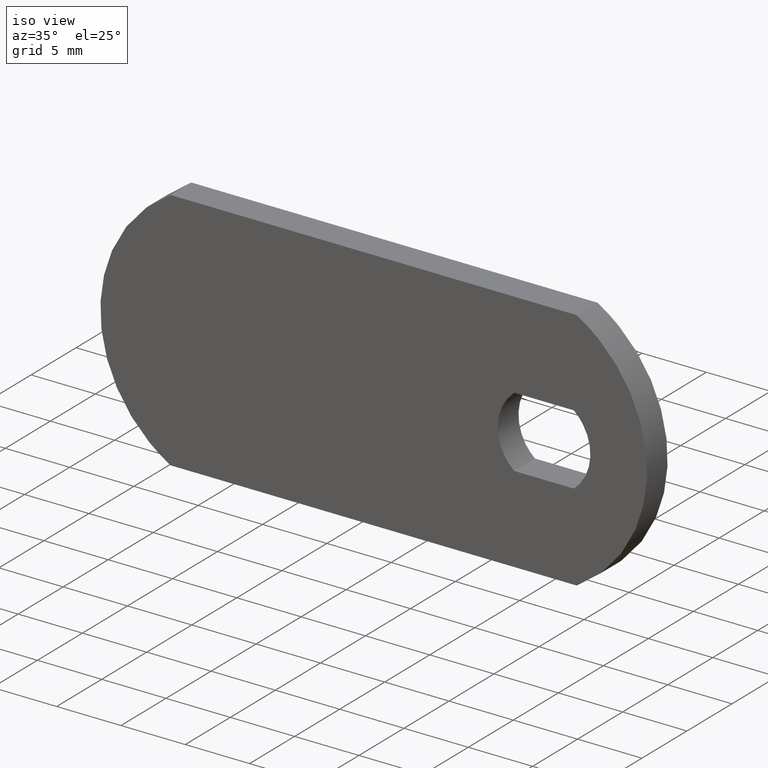
[diagram: clean part render]
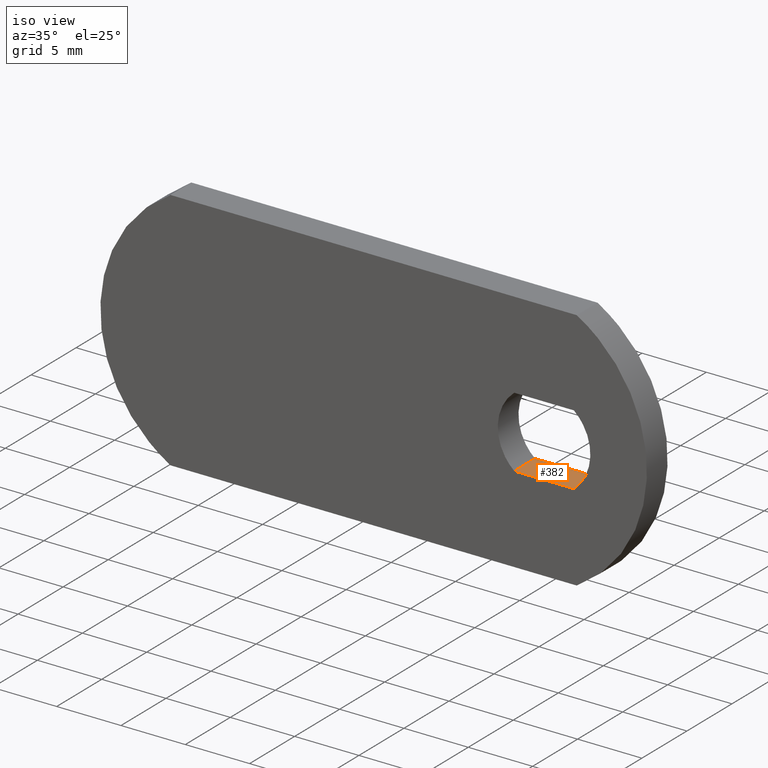
[diagram: same view with one face highlighted and labeled with its STEP entity id]
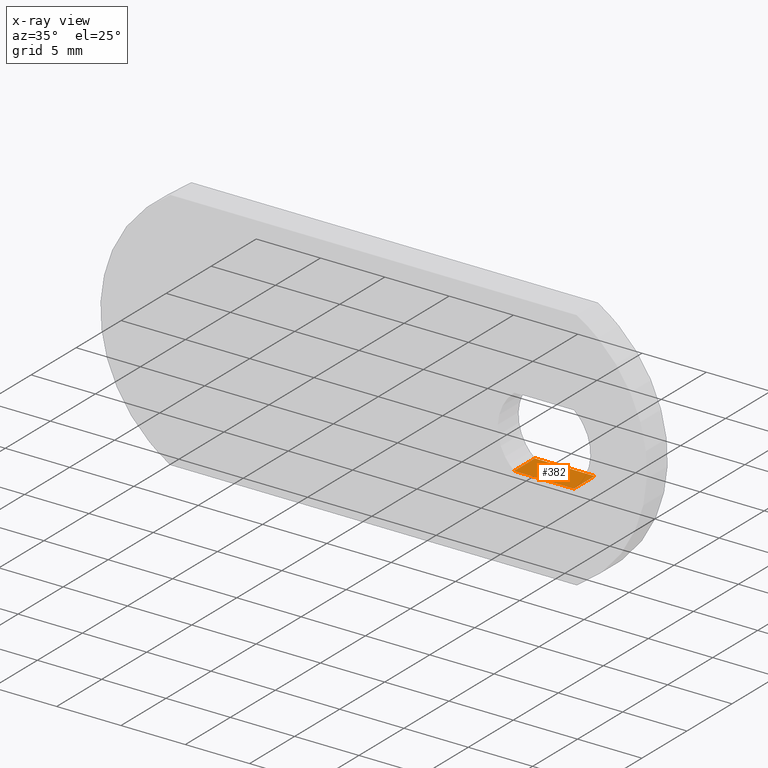
[diagram: x-ray of the same camera — body ghosted, the highlighted face saturated]
A machine part, iso view. The second image highlights one B-rep face of the part: STEP entity #382.
The next image is the same camera in x-ray: the body ghosted, the highlighted face saturated — about 0% of this face is hidden behind the body in this view.
In plain terms, the highlighted face is a freeform B-spline surface patch.
Its self-contained STEP definition (entity closure, byte-faithful):
#108=CARTESIAN_POINT('',(-2.323252031097790,0.0,-2.750000000000000));
#109=VERTEX_POINT('',#108);
#125=CARTESIAN_POINT('',(2.323252031097790,0.0,-2.750000000000000));
#126=VERTEX_POINT('',#125);
#127=CARTESIAN_POINT('',(2.323252031097790,0.0,-2.750000000000000));
#128=CARTESIAN_POINT('',(-2.323252031097790,0.0,-2.750000000000000));
#129=QUASI_UNIFORM_CURVE('',1,(#127,#128),.UNSPECIFIED.,.F.,.U.);
#130=EDGE_CURVE('',#126,#109,#129,.T.);
#214=CARTESIAN_POINT('',(2.323252031097790,-2.300000000000080,-2.750000000000000));
#215=VERTEX_POINT('',#214);
#231=CARTESIAN_POINT('',(-2.323252031097790,-2.300000000000080,-2.750000000000000));
#232=VERTEX_POINT('',#231);
#233=CARTESIAN_POINT('',(2.323252031097790,-2.300000000000080,-2.750000000000000));
#234=CARTESIAN_POINT('',(-2.323252031097790,-2.300000000000080,-2.750000000000000));
#235=QUASI_UNIFORM_CURVE('',1,(#233,#234),.UNSPECIFIED.,.F.,.U.);
#236=EDGE_CURVE('',#215,#232,#235,.T.);
#271=CARTESIAN_POINT('',(2.323252031097790,-2.300000000000080,-2.750000000000000));
#272=CARTESIAN_POINT('',(2.323252031097790,0.0,-2.750000000000000));
#273=QUASI_UNIFORM_CURVE('',1,(#271,#272),.UNSPECIFIED.,.F.,.U.);
#274=EDGE_CURVE('',#215,#126,#273,.T.);
#367=CARTESIAN_POINT('',(2.555344839780001,-2.414884952360728,-2.750000000000000));
#368=CARTESIAN_POINT('',(-2.555344673608066,-2.414884952360728,-2.750000000000000));
#369=CARTESIAN_POINT('',(2.555344839780001,0.114885055178661,-2.750000000000000));
#370=CARTESIAN_POINT('',(-2.555344673608066,0.114885055178661,-2.750000000000000));
#371=B_SPLINE_SURFACE_WITH_KNOTS('',1,1,((#367,#369),(#368,#370)),.UNSPECIFIED.,.F.,.F.,.U.,(2,2),(2,2),(0.0,5.110689513388067),(0.0,2.529770007539389),.UNSPECIFIED.);
#372=ORIENTED_EDGE('',*,*,#130,.T.);
#373=CARTESIAN_POINT('',(-2.323252031097790,-2.300000000000080,-2.750000000000000));
#374=CARTESIAN_POINT('',(-2.323252031097790,0.0,-2.750000000000000));
#375=QUASI_UNIFORM_CURVE('',1,(#373,#374),.UNSPECIFIED.,.F.,.U.);
#376=EDGE_CURVE('',#232,#109,#375,.T.);
#377=ORIENTED_EDGE('',*,*,#376,.F.);
#378=ORIENTED_EDGE('',*,*,#236,.F.);
#379=ORIENTED_EDGE('',*,*,#274,.T.);
#380=EDGE_LOOP('',(#372,#377,#378,#379));
#381=FACE_OUTER_BOUND('',#380,.T.);
#382=ADVANCED_FACE('',(#381),#371,.F.);